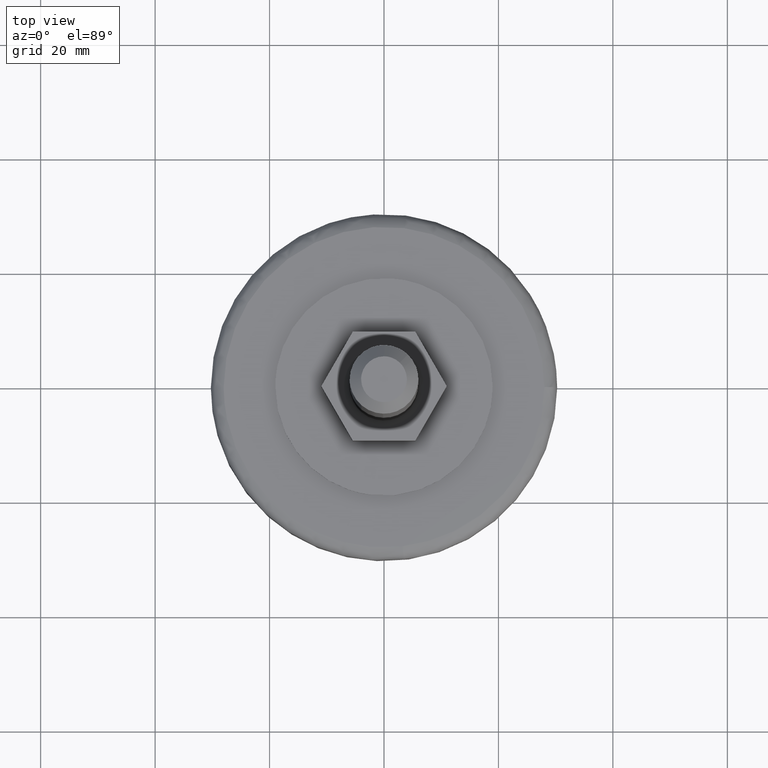
[diagram: clean part render]
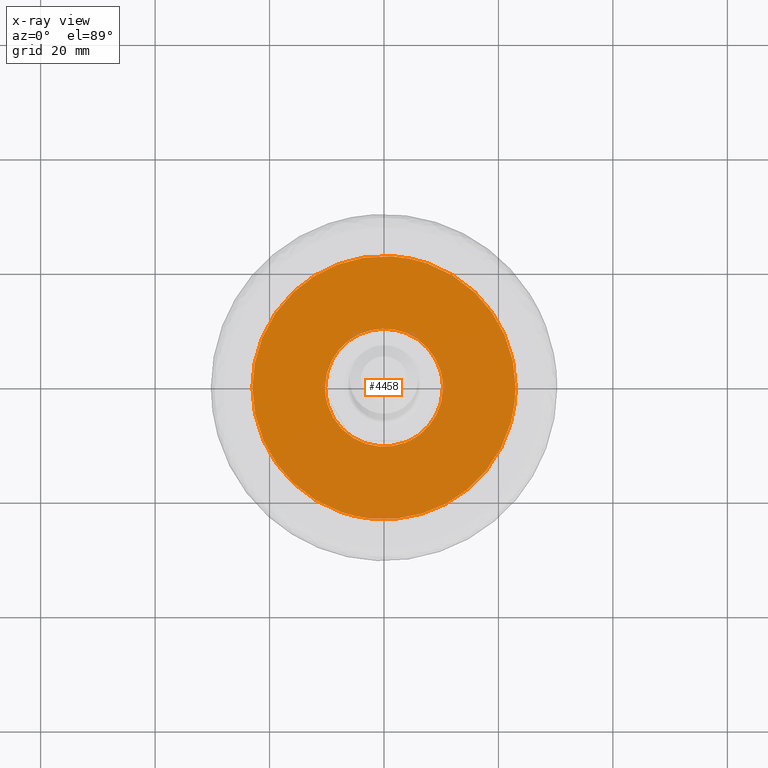
[diagram: x-ray — body ghosted, one internal face saturated and labeled with its STEP entity id]
A machine part, top view, then the same camera in x-ray: the body is ghosted and one INTERNAL B-rep face — a face not visible from any outside direction — is saturated and labeled: STEP entity #4458.
In plain terms, the highlighted face is a freeform B-spline surface patch.
Its self-contained STEP definition (entity closure, byte-faithful):
#3980=CARTESIAN_POINT('',(-2.714764804062473,-22.839221791867288,9.199999999999395));
#3981=VERTEX_POINT('',#3980);
#3982=CARTESIAN_POINT('',(23.0,0.0,9.200000000000101));
#3983=VERTEX_POINT('',#3982);
#3984=CARTESIAN_POINT('',(-2.714764804062473,-22.839221791867292,9.199999999999395));
#3985=CARTESIAN_POINT('',(-1.362143336048741,-23.000000000000004,9.200000000000101));
#3986=CARTESIAN_POINT('',(0.0,-23.0,9.200000000000101));
#3987=CARTESIAN_POINT('',(22.999999999999993,-22.999999999999993,9.200000000000101));
#3988=CARTESIAN_POINT('',(23.0,0.0,9.200000000000101));
#3996=(BOUNDED_CURVE()B_SPLINE_CURVE(2,(#3984,#3985,#3986,#3987,#3988),.UNSPECIFIED.,.F.,.U.)B_SPLINE_CURVE_WITH_KNOTS((3,2,3),(0.229562640697275,0.250000000000000,0.500000000000000),.UNSPECIFIED.)CURVE()GEOMETRIC_REPRESENTATION_ITEM()RATIONAL_B_SPLINE_CURVE((0.956027081870986,0.976056144199111,1.0,0.707106781186548,1.0))REPRESENTATION_ITEM(''));
#3997=EDGE_CURVE('',#3981,#3983,#3996,.T.);
#4038=CARTESIAN_POINT('',(1.404087299490265,22.957102144098229,9.200000000000101));
#4039=VERTEX_POINT('',#4038);
#4045=CARTESIAN_POINT('',(23.0,0.0,9.200000000000101));
#4046=CARTESIAN_POINT('',(22.999999999999996,21.636267025060512,9.200000000000101));
#4047=CARTESIAN_POINT('',(1.404087299490265,22.957102144098233,9.200000000000101));
#4055=(BOUNDED_CURVE()B_SPLINE_CURVE(2,(#4045,#4046,#4047),.UNSPECIFIED.,.F.,.U.)B_SPLINE_CURVE_WITH_KNOTS((3,3),(0.500000000000000,0.739333181032898),.UNSPECIFIED.)CURVE()GEOMETRIC_REPRESENTATION_ITEM()RATIONAL_B_SPLINE_CURVE((1.0,0.719603736953647,0.976072510584261))REPRESENTATION_ITEM(''));
#4056=EDGE_CURVE('',#3983,#4039,#4055,.T.);
#4079=CARTESIAN_POINT('',(-23.0,0.0,9.200000000000101));
#4080=VERTEX_POINT('',#4079);
#4081=CARTESIAN_POINT('',(-23.0,0.0,9.200000000000101));
#4082=CARTESIAN_POINT('',(-23.0,-20.428034446972234,9.200000000000102));
#4083=CARTESIAN_POINT('',(-2.714764804062473,-22.839221791867292,9.199999999999395));
#4091=(BOUNDED_CURVE()B_SPLINE_CURVE(2,(#4081,#4082,#4083),.UNSPECIFIED.,.F.,.U.)B_SPLINE_CURVE_WITH_KNOTS((3,3),(0.0,0.229562640697275),.UNSPECIFIED.)CURVE()GEOMETRIC_REPRESENTATION_ITEM()RATIONAL_B_SPLINE_CURVE((1.0,0.731050636987436,0.956027081870986))REPRESENTATION_ITEM(''));
#4092=EDGE_CURVE('',#4080,#3981,#4091,.T.);
#4094=CARTESIAN_POINT('',(1.404087299490265,22.957102144098233,9.200000000000101));
#4095=CARTESIAN_POINT('',(0.702698960152700,23.000000000000007,9.200000000000099));
#4096=CARTESIAN_POINT('',(0.0,23.0,9.200000000000101));
#4097=CARTESIAN_POINT('',(-22.999999999999993,22.999999999999993,9.200000000000101));
#4098=CARTESIAN_POINT('',(-23.0,0.0,9.200000000000101));
#4106=(BOUNDED_CURVE()B_SPLINE_CURVE(2,(#4094,#4095,#4096,#4097,#4098),.UNSPECIFIED.,.F.,.U.)B_SPLINE_CURVE_WITH_KNOTS((3,2,3),(0.739333181032898,0.750000000000000,1.0),.UNSPECIFIED.)CURVE()GEOMETRIC_REPRESENTATION_ITEM()RATIONAL_B_SPLINE_CURVE((0.976072510584261,0.987503044232901,1.0,0.707106781186548,1.0))REPRESENTATION_ITEM(''));
#4107=EDGE_CURVE('',#4039,#4080,#4106,.T.);
#4323=CARTESIAN_POINT('',(10.299999998673080,4.437237E-016,9.199999999999999));
#4324=VERTEX_POINT('',#4323);
#4338=CARTESIAN_POINT('',(-10.300000000000001,0.0,9.199999999999999));
#4339=VERTEX_POINT('',#4338);
#4340=CARTESIAN_POINT('',(-10.300000000000001,0.0,9.199999999999999));
#4341=CARTESIAN_POINT('',(-10.300000000000001,10.300000000000001,9.199999999999999));
#4342=CARTESIAN_POINT('',(0.0,10.300000000000001,9.199999999999999));
#4343=CARTESIAN_POINT('',(10.300000000000001,10.300000000000001,9.199999999999999));
#4344=CARTESIAN_POINT('',(10.299999998673080,4.437237E-016,9.199999999999999));
#4352=(BOUNDED_CURVE()B_SPLINE_CURVE(2,(#4340,#4341,#4342,#4343,#4344),.UNSPECIFIED.,.F.,.U.)B_SPLINE_CURVE_WITH_KNOTS((3,2,3),(0.0,0.250000000000000,0.500000000000000),.UNSPECIFIED.)CURVE()GEOMETRIC_REPRESENTATION_ITEM()RATIONAL_B_SPLINE_CURVE((1.0,0.707106781186547,1.0,0.707106781186547,1.0))REPRESENTATION_ITEM(''));
#4353=EDGE_CURVE('',#4339,#4324,#4352,.T.);
#4355=CARTESIAN_POINT('',(3.639010256261185,-9.635746174004026,9.199999999999999));
#4356=VERTEX_POINT('',#4355);
#4357=CARTESIAN_POINT('',(3.639010256261185,-9.635746174004026,9.199999999999999));
#4358=CARTESIAN_POINT('',(1.880130561235110,-10.300000000000002,9.199999999999999));
#4359=CARTESIAN_POINT('',(0.0,-10.300000000000001,9.199999999999999));
#4360=CARTESIAN_POINT('',(-10.300000000000001,-10.300000000000001,9.199999999999999));
#4361=CARTESIAN_POINT('',(-10.300000000000001,0.0,9.199999999999999));
#4369=(BOUNDED_CURVE()B_SPLINE_CURVE(2,(#4357,#4358,#4359,#4360,#4361),.UNSPECIFIED.,.F.,.U.)B_SPLINE_CURVE_WITH_KNOTS((3,2,3),(0.689999999997025,0.750000000000000,1.0),.UNSPECIFIED.)CURVE()GEOMETRIC_REPRESENTATION_ITEM()RATIONAL_B_SPLINE_CURVE((0.893152553773227,0.929705627481285,1.0,0.707106781186547,1.0))REPRESENTATION_ITEM(''));
#4370=EDGE_CURVE('',#4356,#4339,#4369,.T.);
#4407=CARTESIAN_POINT('',(10.299999998673080,4.437237E-016,9.199999999999999));
#4408=CARTESIAN_POINT('',(10.300000000000002,-7.120174515640304,9.199999999999998));
#4409=CARTESIAN_POINT('',(3.639010256261185,-9.635746174004026,9.199999999999999));
#4417=(BOUNDED_CURVE()B_SPLINE_CURVE(2,(#4407,#4408,#4409),.UNSPECIFIED.,.F.,.U.)B_SPLINE_CURVE_WITH_KNOTS((3,3),(0.500000000000000,0.689999999997024),.UNSPECIFIED.)CURVE()GEOMETRIC_REPRESENTATION_ITEM()RATIONAL_B_SPLINE_CURVE((1.0,0.777401153705263,0.893152553773226))REPRESENTATION_ITEM(''));
#4418=EDGE_CURVE('',#4324,#4356,#4417,.T.);
#4442=CARTESIAN_POINT('',(-25.297699910843079,25.297140543101680,9.199999999999999));
#4443=CARTESIAN_POINT('',(25.297701144659221,25.297140543101680,9.199999999999999));
#4444=CARTESIAN_POINT('',(-25.297699910843079,-25.297281609414469,9.199999999999999));
#4445=CARTESIAN_POINT('',(25.297701144659221,-25.297281609414469,9.199999999999999));
#4446=B_SPLINE_SURFACE_WITH_KNOTS('',1,1,((#4442,#4444),(#4443,#4445)),.UNSPECIFIED.,.F.,.F.,.U.,(2,2),(2,2),(0.0,50.595401055502293),(0.0,50.594422152516152),.UNSPECIFIED.);
#4447=ORIENTED_EDGE('',*,*,#4092,.T.);
#4448=ORIENTED_EDGE('',*,*,#3997,.T.);
#4449=ORIENTED_EDGE('',*,*,#4056,.T.);
#4450=ORIENTED_EDGE('',*,*,#4107,.T.);
#4451=EDGE_LOOP('',(#4447,#4448,#4449,#4450));
#4452=FACE_OUTER_BOUND('',#4451,.T.);
#4453=ORIENTED_EDGE('',*,*,#4353,.T.);
#4454=ORIENTED_EDGE('',*,*,#4418,.T.);
#4455=ORIENTED_EDGE('',*,*,#4370,.T.);
#4456=EDGE_LOOP('',(#4453,#4454,#4455));
#4457=FACE_BOUND('',#4456,.T.);
#4458=ADVANCED_FACE('',(#4452,#4457),#4446,.F.);